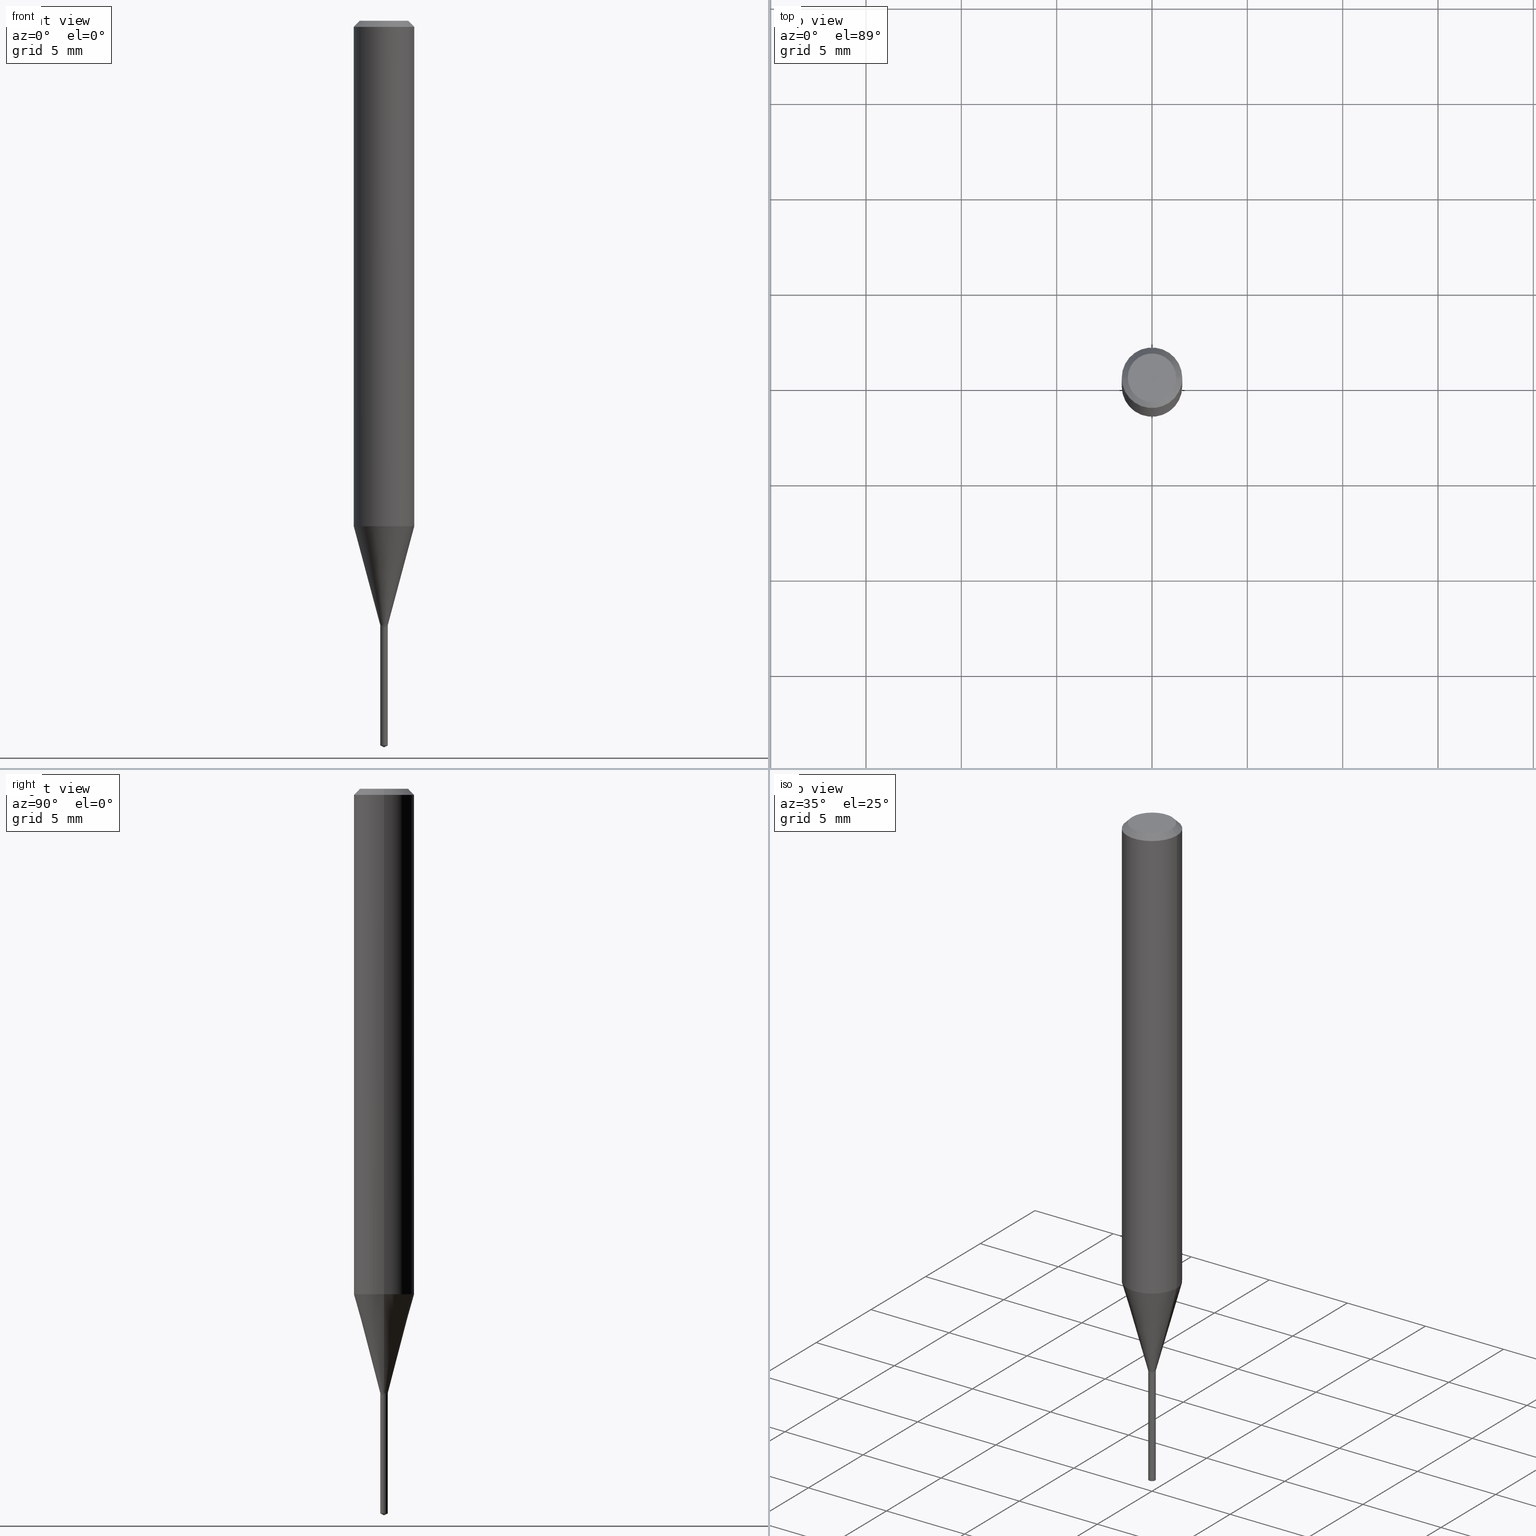
[diagram: canonical four-view strip — front | top / right | iso, engineering-drawing reading convention]
A machine part, canonical four-view strip (front | top / right | iso — engineering-drawing reading convention). The complete STEP part file that produces these views, byte-faithful:
ISO-10303-21;
HEADER;
FILE_DESCRIPTION (( 'STEP AP203' ),
    '1' );
FILE_NAME ('07233.STEP',
    '2024-04-23T20:07:11',
    ( '' ),
    ( '' ),
    'SwSTEP 2.0',
    'SolidWorks 2023',
    '' );
FILE_SCHEMA (( 'CONFIG_CONTROL_DESIGN' ));
ENDSEC;

DATA;
#1 = CALENDAR_DATE ( 2024, 23, 4 ) ;
#2 = CARTESIAN_POINT ( 'NONE',  ( 3.056836007731421306E-29, -4.364351673553932471E-15, -1.250000000000000000 ) ) ;
#3 = CIRCLE ( 'NONE', #370, 0.007849999999999992401 ) ;
#4 = PERSON_AND_ORGANIZATION_ROLE ( 'design_owner' ) ;
#5 = VERTEX_POINT ( 'NONE', #387 ) ;
#6 = DIRECTION ( 'NONE',  ( 1.000000000000000000, -6.982962677686205179E-15, 0.000000000000000000 ) ) ;
#7 = DIRECTION ( 'NONE',  ( 1.000000000000000000, -6.982962677686266711E-15, 0.000000000000000000 ) ) ;
#8 = ORGANIZATION ( 'UNSPECIFIED', 'UNSPECIFIED', '' ) ;
#9 = EDGE_CURVE ( 'NONE', #426, #252, #354, .T. ) ;
#10 = PERSON_AND_ORGANIZATION ( #211, #8 ) ;
#11 = VERTEX_POINT ( 'NONE', #419 ) ;
#12 = LINE ( 'NONE', #89, #381 ) ;
#13 = EDGE_CURVE ( 'NONE', #42, #480, #78, .T. ) ;
#14 = CARTESIAN_POINT ( 'NONE',  ( 3.056836007731421306E-29, -4.364351673553932471E-15, -1.250000000000000000 ) ) ;
#15 = CALENDAR_DATE ( 2024, 23, 4 ) ;
#16 = DIRECTION ( 'NONE',  ( -2.445468806185136597E-29, 3.491481338843145583E-15, 1.000000000000000000 ) ) ;
#17 = LINE ( 'NONE', #197, #401 ) ;
#18 = VECTOR ( 'NONE', #321, 39.37007874015748143 ) ;
#19 = ORIENTED_EDGE ( 'NONE', *, *, #475, .F. ) ;
#20 = CONICAL_SURFACE ( 'NONE', #427, 84.42940631927142192, 1.134464013796302684 ) ;
#21 = LINE ( 'NONE', #332, #287 ) ;
#22 = LOCAL_TIME ( 16, 7, 11.00000000000000000, #106 ) ;
#23 = CARTESIAN_POINT ( 'NONE',  ( 0.04999999999999999584, -4.077247707424184705E-16, -1.592040838888913461E-18 ) ) ;
#24 = DIRECTION ( 'NONE',  ( -2.445468806185136597E-29, 3.491481338843145583E-15, 1.000000000000000000 ) ) ;
#25 = ADVANCED_FACE ( 'NONE', ( #429 ), #424, .T. ) ;
#26 = DIRECTION ( 'NONE',  ( -2.445468806185136597E-29, 3.491481338843145583E-15, 1.000000000000000000 ) ) ;
#27 = ORIENTED_EDGE ( 'NONE', *, *, #295, .T. ) ;
#28 = CIRCLE ( 'NONE', #413, 0.007349999999999991956 ) ;
#29 = DIRECTION ( 'NONE',  ( 1.000000000000000000, -6.982962677686264344E-15, 0.000000000000000000 ) ) ;
#30 = EDGE_LOOP ( 'NONE', ( #389, #129, #473 ) ) ;
#31 = CARTESIAN_POINT ( 'NONE',  ( 0.06250000000000012490, -4.080296704445417629E-15, -1.043643423366360956 ) ) ;
#32 = EDGE_LOOP ( 'NONE', ( #375, #222, #237, #263 ) ) ;
#33 = DATE_AND_TIME ( #223, #279 ) ;
#34 = AXIS2_PLACEMENT_3D ( 'NONE', #469, #242, #392 ) ;
#35 = CARTESIAN_POINT ( 'NONE',  ( -0.007349999999999991956, -4.309477555301454136E-15, -1.250000000000000000 ) ) ;
#36 = MECHANICAL_CONTEXT ( 'NONE', #357, 'mechanical' ) ;
#37 = ORIENTED_EDGE ( 'NONE', *, *, #236, .T. ) ;
#38 = APPROVAL ( #388, 'UNSPECIFIED' ) ;
#39 = DIRECTION ( 'NONE',  ( 1.000000000000000000, -6.982962677686266711E-15, 0.000000000000000000 ) ) ;
#40 = DIRECTION ( 'NONE',  ( -6.982962677686265922E-15, -1.000000000000000000, 0.000000000000000000 ) ) ;
#41 = CARTESIAN_POINT ( 'NONE',  ( 3.056836007731441415E-31, -4.364351673553961684E-17, -0.01250000000000008396 ) ) ;
#42 = VERTEX_POINT ( 'NONE', #75 ) ;
#43 = APPROVAL_ROLE ( '' ) ;
#44 = ORIENTED_EDGE ( 'NONE', *, *, #314, .F. ) ;
#45 = CARTESIAN_POINT ( 'NONE',  ( 0.06250000000000000000, -4.800786840909313294E-16, -0.01250000000000008396 ) ) ;
#46 = ADVANCED_FACE ( 'NONE', ( #80 ), #147, .T. ) ;
#47 = DIRECTION ( 'NONE',  ( 6.982962677686265922E-15, 1.000000000000000000, -3.491639703189525300E-15 ) ) ;
#48 = CARTESIAN_POINT ( 'NONE',  ( 3.056836007731421306E-29, -4.364351673553932471E-15, -1.250000000000000000 ) ) ;
#49 = AXIS2_PLACEMENT_3D ( 'NONE', #256, #226, #271 ) ;
#50 = DATE_AND_TIME ( #15, #135 ) ;
#51 = DIRECTION ( 'NONE',  ( -2.445468806185136597E-29, 3.491481338843145583E-15, 1.000000000000000000 ) ) ;
#52 = ORIENTED_EDGE ( 'NONE', *, *, #132, .F. ) ;
#53 = AXIS2_PLACEMENT_3D ( 'NONE', #460, #188, #240 ) ;
#54 = DIRECTION ( 'NONE',  ( -2.445358220953112322E-29, 3.491639703189524906E-15, 1.000000000000000000 ) ) ;
#55 = EDGE_LOOP ( 'NONE', ( #69, #203 ) ) ;
#56 = DIMENSIONAL_EXPONENTS ( 1.000000000000000000, 0.000000000000000000, 0.000000000000000000, 0.000000000000000000, 0.000000000000000000, 0.000000000000000000, 0.000000000000000000 ) ;
#57 = DIRECTION ( 'NONE',  ( -2.445358220953112322E-29, 3.491639703189525300E-15, 1.000000000000000000 ) ) ;
#58 = MANIFOLD_SOLID_BREP ( 'Body-Move/Copy2[2]', #123 ) ;
#59 = SECURITY_CLASSIFICATION ( '', '', #355 ) ;
#60 = DIRECTION ( 'NONE',  ( -6.982962677686267499E-15, -1.000000000000000000, 3.520397390770575354E-15 ) ) ;
#61 = EDGE_CURVE ( 'NONE', #155, #458, #3, .T. ) ;
#62 = DIRECTION ( 'NONE',  ( 2.445468806185136597E-29, -3.491481338843145583E-15, -1.000000000000000000 ) ) ;
#63 = CIRCLE ( 'NONE', #386, 0.007849999999999992401 ) ;
#64 = DIRECTION ( 'NONE',  ( 2.445468806185136597E-29, -3.491481338843145583E-15, -1.000000000000000000 ) ) ;
#65 = ORIENTED_EDGE ( 'NONE', *, *, #216, .F. ) ;
#66 = APPROVAL ( #277, 'UNSPECIFIED' ) ;
#67 = LOCAL_TIME ( 16, 7, 11.00000000000000000, #193 ) ;
#68 = DIRECTION ( 'NONE',  ( -1.000000000000000000, 6.982962677686266711E-15, 0.000000000000000000 ) ) ;
#69 = ORIENTED_EDGE ( 'NONE', *, *, #61, .T. ) ;
#70 = PERSON_AND_ORGANIZATION_ROLE ( 'creator' ) ;
#71 = AXIS2_PLACEMENT_3D ( 'NONE', #362, #51, #158 ) ;
#72 = VERTEX_POINT ( 'NONE', #35 ) ;
#73 = FACE_OUTER_BOUND ( 'NONE', #422, .T. ) ;
#74 = LINE ( 'NONE', #190, #364 ) ;
#75 = CARTESIAN_POINT ( 'NONE',  ( 0.007849999999999997605, -4.410788375360545255E-15, -1.247600000000000042 ) ) ;
#76 = CARTESIAN_POINT ( 'NONE',  ( -0.007849999999999997605, -4.303511420855442473E-15, -1.247600000000000042 ) ) ;
#77 = CARTESIAN_POINT ( 'NONE',  ( 3.050966882596576644E-29, -4.355972118340708465E-15, -1.247600000000000042 ) ) ;
#78 = CIRCLE ( 'NONE', #266, 0.007849999999999997605 ) ;
#79 = ORIENTED_EDGE ( 'NONE', *, *, #314, .T. ) ;
#80 = FACE_OUTER_BOUND ( 'NONE', #224, .T. ) ;
#81 = EDGE_CURVE ( 'NONE', #438, #252, #204, .T. ) ;
#82 = CC_DESIGN_APPROVAL ( #66, ( #59 ) ) ;
#83 = COORDINATED_UNIVERSAL_TIME_OFFSET ( 5, 0, .BEHIND. ) ;
#84 = PLANE ( 'NONE',  #114 ) ;
#85 = AXIS2_PLACEMENT_3D ( 'NONE', #41, #313, #7 ) ;
#86 = DIRECTION ( 'NONE',  ( -6.982962677686267499E-15, -1.000000000000000000, 3.520397390770575354E-15 ) ) ;
#87 = CC_DESIGN_PERSON_AND_ORGANIZATION_ASSIGNMENT ( #247, #462, ( #452 ) ) ;
#88 = VERTEX_POINT ( 'NONE', #352 ) ;
#89 = CARTESIAN_POINT ( 'NONE',  ( -0.06250000000000006939, 4.440892098500631092E-16, -3.074334431409319267E-30 ) ) ;
#90 = ORIENTED_EDGE ( 'NONE', *, *, #258, .F. ) ;
#91 = CARTESIAN_POINT ( 'NONE',  ( -5.481625701980656655E-17, -0.007850000000004356965, -1.250000000000000000 ) ) ;
#92 = ORIENTED_EDGE ( 'NONE', *, *, #13, .T. ) ;
#93 = DIRECTION ( 'NONE',  ( 1.000000000000000000, -6.982962677686202024E-15, 0.000000000000000000 ) ) ;
#94 = DIRECTION ( 'NONE',  ( -2.445358220953112322E-29, 3.491639703189525300E-15, 1.000000000000000000 ) ) ;
#95 = ADVANCED_FACE ( 'NONE', ( #233 ), #457, .F. ) ;
#96 = VECTOR ( 'NONE', #57, 39.37007874015748143 ) ;
#97 = VECTOR ( 'NONE', #94, 39.37007874015748143 ) ;
#98 = CARTESIAN_POINT ( 'NONE',  ( 5.577760475720444332E-17, 0.007849999999995627836, -1.250000000000000000 ) ) ;
#99 = FACE_OUTER_BOUND ( 'NONE', #269, .T. ) ;
#100 = ORIENTED_EDGE ( 'NONE', *, *, #320, .T. ) ;
#101 = LINE ( 'NONE', #261, #185 ) ;
#102 = ORIENTED_EDGE ( 'NONE', *, *, #216, .T. ) ;
#103 = AXIS2_PLACEMENT_3D ( 'NONE', #336, #376, #60 ) ;
#104 =( NAMED_UNIT ( * ) SI_UNIT ( $, .STERADIAN. ) SOLID_ANGLE_UNIT ( ) );
#105 = VERTEX_POINT ( 'NONE', #112 ) ;
#106 = COORDINATED_UNIVERSAL_TIME_OFFSET ( 5, 0, .BEHIND. ) ;
#107 = DIRECTION ( 'NONE',  ( -2.445468806185136877E-29, 3.491481338843145188E-15, 1.000000000000000000 ) ) ;
#108 = CLOSED_SHELL ( 'NONE', ( #304, #225, #411, #436, #246 ) ) ;
#109 = PERSON_AND_ORGANIZATION ( #211, #8 ) ;
#110 = ORIENTED_EDGE ( 'NONE', *, *, #368, .T. ) ;
#111 = CARTESIAN_POINT ( 'NONE',  ( 3.050966882596576644E-29, -4.355972118340708465E-15, -1.247600000000000042 ) ) ;
#112 = CARTESIAN_POINT ( 'NONE',  ( 0.007349999999999991956, -4.415676449234925465E-15, -1.250000000000000000 ) ) ;
#113 = DIRECTION ( 'NONE',  ( -2.445468806185136597E-29, 3.491481338843145583E-15, 1.000000000000000000 ) ) ;
#114 = AXIS2_PLACEMENT_3D ( 'NONE', #323, #474, #47 ) ;
#115 = SHAPE_DEFINITION_REPRESENTATION ( #251, #150 ) ;
#116 = EDGE_CURVE ( 'NONE', #319, #42, #306, .T. ) ;
#117 = AXIS2_PLACEMENT_3D ( 'NONE', #400, #54, #206 ) ;
#118 = LINE ( 'NONE', #245, #18 ) ;
#119 = LOCAL_TIME ( 16, 7, 11.00000000000000000, #244 ) ;
#120 = EDGE_LOOP ( 'NONE', ( #52, #37, #276 ) ) ;
#121 = PERSON_AND_ORGANIZATION_ROLE ( 'classification_officer' ) ;
#122 = FACE_OUTER_BOUND ( 'NONE', #32, .T. ) ;
#123 = CLOSED_SHELL ( 'NONE', ( #210, #330, #46, #481, #162, #200, #25, #350, #404, #273, #95, #378 ) ) ;
#124 = VECTOR ( 'NONE', #283, 39.37007874015748143 ) ;
#125 = DIRECTION ( 'NONE',  ( -2.445468806185136597E-29, 3.491481338843145583E-15, 1.000000000000000000 ) ) ;
#126 = EDGE_CURVE ( 'NONE', #218, #302, #63, .T. ) ;
#127 = ORIENTED_EDGE ( 'NONE', *, *, #81, .F. ) ;
#128 = DIRECTION ( 'NONE',  ( -2.445468806185136597E-29, 3.491481338843145583E-15, 1.000000000000000000 ) ) ;
#129 = ORIENTED_EDGE ( 'NONE', *, *, #132, .T. ) ;
#130 = DIRECTION ( 'NONE',  ( 0.2588190451025211836, 1.565188264969622559E-15, 0.9659258262890679791 ) ) ;
#131 = PRODUCT_RELATED_PRODUCT_CATEGORY ( 'detail', '', ( #329 ) ) ;
#132 = EDGE_CURVE ( 'NONE', #11, #302, #74, .T. ) ;
#133 = CARTESIAN_POINT ( 'NONE',  ( -0.06250000000000000000, -1.399663317062718764E-15, -0.01250000000000008396 ) ) ;
#134 = FACE_OUTER_BOUND ( 'NONE', #286, .T. ) ;
#135 = LOCAL_TIME ( 16, 7, 11.00000000000000000, #83 ) ;
#136 = CARTESIAN_POINT ( 'NONE',  ( 3.056836007731441415E-31, -4.364351673553961684E-17, -0.01250000000000008396 ) ) ;
#137 = ORIENTED_EDGE ( 'NONE', *, *, #342, .T. ) ;
#138 = DIRECTION ( 'NONE',  ( 1.000000000000000000, -6.982962677686266711E-15, 0.000000000000000000 ) ) ;
#139 = EDGE_LOOP ( 'NONE', ( #453, #177, #167, #175 ) ) ;
#140 = EDGE_CURVE ( 'NONE', #88, #480, #227, .T. ) ;
#141 = DIRECTION ( 'NONE',  ( 1.000000000000000000, -6.982962677686202024E-15, 0.000000000000000000 ) ) ;
#142 = VERTEX_POINT ( 'NONE', #472 ) ;
#143 = AXIS2_PLACEMENT_3D ( 'NONE', #459, #144, #39 ) ;
#144 = DIRECTION ( 'NONE',  ( -2.445468806185136597E-29, 3.491481338843145583E-15, 1.000000000000000000 ) ) ;
#145 = DIRECTION ( 'NONE',  ( 1.000000000000000000, -6.982962677686265922E-15, 4.876176775795935793E-29 ) ) ;
#146 =( LENGTH_UNIT ( ) NAMED_UNIT ( * ) SI_UNIT ( $, .METRE. ) );
#147 = CYLINDRICAL_SURFACE ( 'NONE', #53, 0.06250000000000006939 ) ;
#148 = CARTESIAN_POINT ( 'NONE',  ( 3.050966882596576644E-29, -4.355972118340708465E-15, -1.247600000000000042 ) ) ;
#149 = CARTESIAN_POINT ( 'NONE',  ( 3.056836007731421306E-29, -4.364351673553932471E-15, -1.250000000000000000 ) ) ;
#150 = ADVANCED_BREP_SHAPE_REPRESENTATION ( '07233', ( #241, #58, #322 ), #183 ) ;
#151 =( NAMED_UNIT ( * ) PLANE_ANGLE_UNIT ( ) SI_UNIT ( $, .RADIAN. ) );
#152 = DIRECTION ( 'NONE',  ( 1.000000000000000000, -6.982962677686205179E-15, 0.000000000000000000 ) ) ;
#153 = ORIENTED_EDGE ( 'NONE', *, *, #428, .F. ) ;
#154 = COORDINATED_UNIVERSAL_TIME_OFFSET ( 5, 0, .BEHIND. ) ;
#155 = VERTEX_POINT ( 'NONE', #91 ) ;
#156 = EDGE_CURVE ( 'NONE', #458, #155, #485, .T. ) ;
#157 = AXIS2_PLACEMENT_3D ( 'NONE', #136, #64, #214 ) ;
#158 = DIRECTION ( 'NONE',  ( 1.000000000000000000, -6.982962677686266711E-15, 4.876176775795935793E-29 ) ) ;
#159 = DIRECTION ( 'NONE',  ( -6.982962677686265922E-15, -1.000000000000000000, 0.000000000000000000 ) ) ;
#160 = AXIS2_PLACEMENT_3D ( 'NONE', #148, #189, #6 ) ;
#161 = CYLINDRICAL_SURFACE ( 'NONE', #71, 0.007849999999999997605 ) ;
#162 = ADVANCED_FACE ( 'NONE', ( #248 ), #161, .T. ) ;
#163 = AXIS2_PLACEMENT_3D ( 'NONE', #280, #125, #468 ) ;
#164 = ORIENTED_EDGE ( 'NONE', *, *, #363, .F. ) ;
#165 = DATE_TIME_ROLE ( 'classification_date' ) ;
#166 = DIRECTION ( 'NONE',  ( -2.445468806185136877E-29, 3.491481338843145188E-15, 1.000000000000000000 ) ) ;
#167 = ORIENTED_EDGE ( 'NONE', *, *, #116, .T. ) ;
#168 = CYLINDRICAL_SURFACE ( 'NONE', #292, 0.007849999999999997605 ) ;
#169 = CONICAL_SURFACE ( 'NONE', #160, 0.007849999999999997605, 0.2617993877991499074 ) ;
#170 = CYLINDRICAL_SURFACE ( 'NONE', #255, 0.007849999999999992401 ) ;
#171 = LINE ( 'NONE', #301, #420 ) ;
#172 = CARTESIAN_POINT ( 'NONE',  ( 3.055613273328329626E-29, -4.362605932884511757E-15, -1.249500000000000499 ) ) ;
#173 = ORIENTED_EDGE ( 'NONE', *, *, #396, .T. ) ;
#174 = CARTESIAN_POINT ( 'NONE',  ( 2.552197436622703749E-29, -3.643861537090025960E-15, -1.043643423366360956 ) ) ;
#175 = ORIENTED_EDGE ( 'NONE', *, *, #334, .F. ) ;
#176 = DIRECTION ( 'NONE',  ( -2.445468806185136597E-29, 3.491481338843145583E-15, 1.000000000000000000 ) ) ;
#177 = ORIENTED_EDGE ( 'NONE', *, *, #475, .T. ) ;
#178 = VECTOR ( 'NONE', #327, 39.37007874015748143 ) ;
#179 = DATE_TIME_ROLE ( 'creation_date' ) ;
#180 = ORIENTED_EDGE ( 'NONE', *, *, #455, .T. ) ;
#181 = AXIS2_PLACEMENT_3D ( 'NONE', #409, #477, #406 ) ;
#182 = EDGE_CURVE ( 'NONE', #105, #319, #118, .T. ) ;
#183 =( GEOMETRIC_REPRESENTATION_CONTEXT ( 3 ) GLOBAL_UNCERTAINTY_ASSIGNED_CONTEXT ( ( #398 ) ) GLOBAL_UNIT_ASSIGNED_CONTEXT ( ( #421, #151, #104 ) ) REPRESENTATION_CONTEXT ( 'NONE', 'WORKASPACE' ) );
#184 = CALENDAR_DATE ( 2024, 23, 4 ) ;
#185 = VECTOR ( 'NONE', #412, 39.37007874015748854 ) ;
#186 = EDGE_LOOP ( 'NONE', ( #484, #447 ) ) ;
#187 = CARTESIAN_POINT ( 'NONE',  ( 0.000000000000000000, 0.000000000000000000, 0.000000000000000000 ) ) ;
#188 = DIRECTION ( 'NONE',  ( -2.445468806185136597E-29, 3.491481338843145583E-15, 1.000000000000000000 ) ) ;
#189 = DIRECTION ( 'NONE',  ( -2.445468806185136597E-29, 3.491481338843145583E-15, 1.000000000000000000 ) ) ;
#190 = CARTESIAN_POINT ( 'NONE',  ( 3.668037331429668062E-29, -5.237459554784286570E-15, -1.500000000000000222 ) ) ;
#191 = CC_DESIGN_PERSON_AND_ORGANIZATION_ASSIGNMENT ( #423, #4, ( #329 ) ) ;
#192 = ORIENTED_EDGE ( 'NONE', *, *, #182, .T. ) ;
#193 = COORDINATED_UNIVERSAL_TIME_OFFSET ( 5, 0, .BEHIND. ) ;
#194 = CIRCLE ( 'NONE', #431, 0.04999999999999999584 ) ;
#195 = ORIENTED_EDGE ( 'NONE', *, *, #61, .F. ) ;
#196 = PERSON_AND_ORGANIZATION_ROLE ( 'creator' ) ;
#197 = CARTESIAN_POINT ( 'NONE',  ( 0.06250000000000006939, -4.364351673553921624E-16, 3.047610484872463374E-30 ) ) ;
#198 = ORIENTED_EDGE ( 'NONE', *, *, #334, .T. ) ;
#199 = DIRECTION ( 'NONE',  ( -2.445358220953112322E-29, 3.491639703189524906E-15, 1.000000000000000000 ) ) ;
#200 = ADVANCED_FACE ( 'NONE', ( #361 ), #168, .T. ) ;
#201 = CARTESIAN_POINT ( 'NONE',  ( -5.481625701980053299E-17, -0.007850000000005215653, -1.496339484883483228 ) ) ;
#202 = FACE_OUTER_BOUND ( 'NONE', #208, .T. ) ;
#203 = ORIENTED_EDGE ( 'NONE', *, *, #156, .T. ) ;
#204 = CIRCLE ( 'NONE', #85, 0.06250000000000000000 ) ;
#205 = PERSON_AND_ORGANIZATION ( #211, #8 ) ;
#206 = DIRECTION ( 'NONE',  ( -6.982962677686265922E-15, -1.000000000000000000, 0.000000000000000000 ) ) ;
#207 = VECTOR ( 'NONE', #394, 39.37007874015748854 ) ;
#208 = EDGE_LOOP ( 'NONE', ( #180, #290, #195, #365 ) ) ;
#209 = CARTESIAN_POINT ( 'NONE',  ( 3.056836007731421306E-29, -4.364351673553932471E-15, -1.250000000000000000 ) ) ;
#210 = ADVANCED_FACE ( 'NONE', ( #122 ), #433, .T. ) ;
#211 = PERSON ( 'UNSPECIFIED', 'UNSPECIFIED', 'UNSPECIFIED', ('UNSPECIFIED'), ('UNSPECIFIED'), ('UNSPECIFIED') ) ;
#212 = CARTESIAN_POINT ( 'NONE',  ( 3.056836007731421306E-29, -4.364351673553932471E-15, -1.250000000000000000 ) ) ;
#213 = CIRCLE ( 'NONE', #483, 0.06250000000000012490 ) ;
#214 = DIRECTION ( 'NONE',  ( -1.000000000000000000, 6.982962677686266711E-15, 0.000000000000000000 ) ) ;
#215 = CC_DESIGN_PERSON_AND_ORGANIZATION_ASSIGNMENT ( #205, #121, ( #59 ) ) ;
#216 = EDGE_CURVE ( 'NONE', #416, #252, #17, .T. ) ;
#217 = DIRECTION ( 'NONE',  ( -2.445468806185136597E-29, 3.491481338843145583E-15, 1.000000000000000000 ) ) ;
#218 = VERTEX_POINT ( 'NONE', #434 ) ;
#219 = CIRCLE ( 'NONE', #307, 0.06250000000000012490 ) ;
#220 = CC_DESIGN_APPROVAL ( #360, ( #452 ) ) ;
#221 = FACE_OUTER_BOUND ( 'NONE', #487, .T. ) ;
#222 = ORIENTED_EDGE ( 'NONE', *, *, #428, .T. ) ;
#223 = CALENDAR_DATE ( 2024, 23, 4 ) ;
#224 = EDGE_LOOP ( 'NONE', ( #262, #326, #344, #65 ) ) ;
#225 = ADVANCED_FACE ( 'NONE', ( #289 ), #20, .T. ) ;
#226 = DIRECTION ( 'NONE',  ( -2.445468806185136597E-29, 3.491481338843145583E-15, 1.000000000000000000 ) ) ;
#227 = LINE ( 'NONE', #274, #124 ) ;
#228 = CC_DESIGN_APPROVAL ( #38, ( #393 ) ) ;
#229 = CIRCLE ( 'NONE', #311, 0.007849999999999997605 ) ;
#230 = LENGTH_MEASURE_WITH_UNIT ( LENGTH_MEASURE( 0.02539999999999999897 ), #146 );
#231 = DIRECTION ( 'NONE',  ( -2.438088387897960049E-29, 3.491481338843145188E-15, 1.000000000000000000 ) ) ;
#232 = CONICAL_SURFACE ( 'NONE', #157, 0.06250000000000000000, 0.7853981633974452814 ) ;
#233 = FACE_OUTER_BOUND ( 'NONE', #339, .T. ) ;
#234 = ORIENTED_EDGE ( 'NONE', *, *, #396, .F. ) ;
#235 = PERSON_AND_ORGANIZATION ( #211, #8 ) ;
#236 = EDGE_CURVE ( 'NONE', #11, #218, #366, .T. ) ;
#237 = ORIENTED_EDGE ( 'NONE', *, *, #368, .F. ) ;
#238 = DATE_AND_TIME ( #282, #119 ) ;
#239 = CONICAL_SURFACE ( 'NONE', #303, 0.06250000000000000000, 0.7853981633974452814 ) ;
#240 = DIRECTION ( 'NONE',  ( 1.000000000000000000, -6.982962677686266711E-15, 4.876176775795935793E-29 ) ) ;
#241 = MANIFOLD_SOLID_BREP ( 'Body-Move/Copy2[1]', #108 ) ;
#242 = DIRECTION ( 'NONE',  ( 2.438088387897960049E-29, -3.491481338843145188E-15, -1.000000000000000000 ) ) ;
#243 = VECTOR ( 'NONE', #464, 39.37007874015748143 ) ;
#244 = COORDINATED_UNIVERSAL_TIME_OFFSET ( 5, 0, .BEHIND. ) ;
#245 = CARTESIAN_POINT ( 'NONE',  ( 0.007349999999999991956, -4.415676449234925465E-15, -1.250000000000000000 ) ) ;
#246 = ADVANCED_FACE ( 'NONE', ( #432 ), #84, .F. ) ;
#247 = PERSON_AND_ORGANIZATION ( #211, #8 ) ;
#248 = FACE_OUTER_BOUND ( 'NONE', #417, .T. ) ;
#249 = EDGE_LOOP ( 'NONE', ( #234, #198, #79, #414 ) ) ;
#250 = CARTESIAN_POINT ( 'NONE',  ( -0.06250000000000000000, 3.927916506198520587E-16, -0.01250000000000008396 ) ) ;
#251 = PRODUCT_DEFINITION_SHAPE ( 'NONE', 'NONE',  #393 ) ;
#252 = VERTEX_POINT ( 'NONE', #45 ) ;
#253 = DIRECTION ( 'NONE',  ( 1.000000000000000000, -6.982962677686264344E-15, 0.000000000000000000 ) ) ;
#254 = DIRECTION ( 'NONE',  ( -2.445358220953112322E-29, 3.491639703189524906E-15, 1.000000000000000000 ) ) ;
#255 = AXIS2_PLACEMENT_3D ( 'NONE', #209, #367, #333 ) ;
#256 = CARTESIAN_POINT ( 'NONE',  ( 3.893286209682126177E-47, -5.558580879666067980E-33, -1.592040838891559689E-18 ) ) ;
#257 = AXIS2_PLACEMENT_3D ( 'NONE', #172, #446, #138 ) ;
#258 = EDGE_CURVE ( 'NONE', #5, #438, #325, .T. ) ;
#259 = DIRECTION ( 'NONE',  ( 1.000000000000000000, -6.982962677686266711E-15, 4.876176775795935793E-29 ) ) ;
#260 = ORIENTED_EDGE ( 'NONE', *, *, #488, .F. ) ;
#261 = CARTESIAN_POINT ( 'NONE',  ( -0.007849999999999997605, -4.300194513583540433E-15, -1.247600000000000042 ) ) ;
#262 = ORIENTED_EDGE ( 'NONE', *, *, #363, .T. ) ;
#263 = ORIENTED_EDGE ( 'NONE', *, *, #182, .F. ) ;
#264 = CONICAL_SURFACE ( 'NONE', #430, 0.007349999999999991956, 0.7853981633978281973 ) ;
#265 = DATE_AND_TIME ( #1, #22 ) ;
#266 = AXIS2_PLACEMENT_3D ( 'NONE', #111, #272, #152 ) ;
#267 = DIRECTION ( 'NONE',  ( -2.445358220953112322E-29, 3.491639703189524906E-15, 1.000000000000000000 ) ) ;
#268 = APPROVAL_DATE_TIME ( #353, #38 ) ;
#269 = EDGE_LOOP ( 'NONE', ( #153, #27, #192, #19 ) ) ;
#270 = CC_DESIGN_PERSON_AND_ORGANIZATION_ASSIGNMENT ( #109, #196, ( #452 ) ) ;
#271 = DIRECTION ( 'NONE',  ( 1.000000000000000000, -6.982962677686265922E-15, 4.875957971899673662E-29 ) ) ;
#272 = DIRECTION ( 'NONE',  ( -2.445468806185136597E-29, 3.491481338843145583E-15, 1.000000000000000000 ) ) ;
#273 = ADVANCED_FACE ( 'NONE', ( #356 ), #359, .F. ) ;
#274 = CARTESIAN_POINT ( 'NONE',  ( -0.007849999999999997605, 5.577760475716784757E-17, -3.861364045850100084E-31 ) ) ;
#275 = DESIGN_CONTEXT ( 'detailed design', #382, 'design' ) ;
#276 = ORIENTED_EDGE ( 'NONE', *, *, #455, .F. ) ;
#277 = APPROVAL_STATUS ( 'not_yet_approved' ) ;
#278 = DIRECTION ( 'NONE',  ( 1.000000000000000000, -6.982962677686205179E-15, 0.000000000000000000 ) ) ;
#279 = LOCAL_TIME ( 16, 7, 11.00000000000000000, #154 ) ;
#280 = CARTESIAN_POINT ( 'NONE',  ( 3.056836007731421306E-29, -4.364351673553932471E-15, -1.250000000000000000 ) ) ;
#281 = EDGE_CURVE ( 'NONE', #142, #438, #12, .T. ) ;
#282 = CALENDAR_DATE ( 2024, 23, 4 ) ;
#283 = DIRECTION ( 'NONE',  ( -2.445468806185136877E-29, 3.491481338843145188E-15, 1.000000000000000000 ) ) ;
#284 = VECTOR ( 'NONE', #107, 39.37007874015748143 ) ;
#285 = DIRECTION ( 'NONE',  ( -2.445358220953112322E-29, 3.491639703189524906E-15, 1.000000000000000000 ) ) ;
#286 = EDGE_LOOP ( 'NONE', ( #341, #337, #137, #470 ) ) ;
#287 = VECTOR ( 'NONE', #130, 39.37007874015748854 ) ;
#288 = PERSON_AND_ORGANIZATION ( #211, #8 ) ;
#289 = FACE_OUTER_BOUND ( 'NONE', #120, .T. ) ;
#290 = ORIENTED_EDGE ( 'NONE', *, *, #448, .T. ) ;
#291 = CARTESIAN_POINT ( 'NONE',  ( 0.007849999999999997605, -4.417422189904349335E-15, -1.249500000000000499 ) ) ;
#292 = AXIS2_PLACEMENT_3D ( 'NONE', #439, #16, #441 ) ;
#293 = LINE ( 'NONE', #442, #97 ) ;
#294 = CARTESIAN_POINT ( 'NONE',  ( 3.659224292236601672E-29, -5.224480399436358067E-15, -1.496339484883483228 ) ) ;
#295 = EDGE_CURVE ( 'NONE', #72, #105, #328, .T. ) ;
#296 = CARTESIAN_POINT ( 'NONE',  ( -5.481625701980656655E-17, -0.007850000000004356965, -1.250000000000000000 ) ) ;
#297 = ORIENTED_EDGE ( 'NONE', *, *, #13, .F. ) ;
#298 = LINE ( 'NONE', #296, #96 ) ;
#299 = ORIENTED_EDGE ( 'NONE', *, *, #418, .F. ) ;
#300 = AXIS2_PLACEMENT_3D ( 'NONE', #14, #128, #93 ) ;
#301 = CARTESIAN_POINT ( 'NONE',  ( -0.007349999999999991956, -4.312126782475565337E-15, -1.250000000000000000 ) ) ;
#302 = VERTEX_POINT ( 'NONE', #201 ) ;
#303 = AXIS2_PLACEMENT_3D ( 'NONE', #486, #62, #68 ) ;
#304 = ADVANCED_FACE ( 'NONE', ( #202 ), #391, .T. ) ;
#305 = APPROVAL_STATUS ( 'not_yet_approved' ) ;
#306 = LINE ( 'NONE', #456, #284 ) ;
#307 = AXIS2_PLACEMENT_3D ( 'NONE', #373, #24, #29 ) ;
#308 = CC_DESIGN_DATE_AND_TIME_ASSIGNMENT ( #33, #179, ( #393 ) ) ;
#309 = APPROVAL_DATE_TIME ( #265, #360 ) ;
#310 = DIRECTION ( 'NONE',  ( -2.445358220953112322E-29, 3.491639703189524906E-15, 1.000000000000000000 ) ) ;
#311 = AXIS2_PLACEMENT_3D ( 'NONE', #443, #217, #451 ) ;
#312 = DIRECTION ( 'NONE',  ( 0.000000000000000000, 0.000000000000000000, 1.000000000000000000 ) ) ;
#313 = DIRECTION ( 'NONE',  ( -2.445468806185136597E-29, 3.491481338843145583E-15, 1.000000000000000000 ) ) ;
#314 = EDGE_CURVE ( 'NONE', #42, #416, #21, .T. ) ;
#315 = AXIS2_PLACEMENT_3D ( 'NONE', #338, #476, #259 ) ;
#316 = DIRECTION ( 'NONE',  ( 1.000000000000000000, 0.000000000000000000, 0.000000000000000000 ) ) ;
#317 = DIRECTION ( 'NONE',  ( -6.328713451373334669E-15, -0.9063077870366434974, 0.4226182617407129860 ) ) ;
#318 = CARTESIAN_POINT ( 'NONE',  ( 3.893286209682126177E-47, -5.558580879666067980E-33, -1.592040838891559689E-18 ) ) ;
#319 = VERTEX_POINT ( 'NONE', #291 ) ;
#320 = EDGE_CURVE ( 'NONE', #252, #438, #405, .T. ) ;
#321 = DIRECTION ( 'NONE',  ( 0.7071067811868161357, -2.468850131085070533E-15, 0.7071067811862788988 ) ) ;
#322 = AXIS2_PLACEMENT_3D ( 'NONE', #187, #312, #316 ) ;
#323 = CARTESIAN_POINT ( 'NONE',  ( 3.056836007731421306E-29, -4.364351673553932471E-15, -1.250000000000000000 ) ) ;
#324 = CC_DESIGN_PERSON_AND_ORGANIZATION_ASSIGNMENT ( #10, #70, ( #393 ) ) ;
#325 = LINE ( 'NONE', #250, #178 ) ;
#326 = ORIENTED_EDGE ( 'NONE', *, *, #281, .T. ) ;
#327 = DIRECTION ( 'NONE',  ( -0.7071067811865453523, 2.468850131082234184E-15, -0.7071067811865496822 ) ) ;
#328 = CIRCLE ( 'NONE', #300, 0.007349999999999991956 ) ;
#329 = PRODUCT ( '07233', '07233', '', ( #36 ) ) ;
#330 = ADVANCED_FACE ( 'NONE', ( #479 ), #232, .T. ) ;
#331 = ORIENTED_EDGE ( 'NONE', *, *, #116, .F. ) ;
#332 = CARTESIAN_POINT ( 'NONE',  ( 0.007849999999999997605, -4.410788375360545255E-15, -1.247600000000000042 ) ) ;
#333 = DIRECTION ( 'NONE',  ( -6.982962677686265922E-15, -1.000000000000000000, 0.000000000000000000 ) ) ;
#334 = EDGE_CURVE ( 'NONE', #480, #42, #229, .T. ) ;
#335 = FACE_OUTER_BOUND ( 'NONE', #30, .T. ) ;
#336 = CARTESIAN_POINT ( 'NONE',  ( -9.260577014384575703E-28, 1.322288684474803865E-13, 37.87007874015748143 ) ) ;
#337 = ORIENTED_EDGE ( 'NONE', *, *, #126, .T. ) ;
#338 = CARTESIAN_POINT ( 'NONE',  ( 0.000000000000000000, 0.000000000000000000, 0.000000000000000000 ) ) ;
#339 = EDGE_LOOP ( 'NONE', ( #299, #425 ) ) ;
#340 = CARTESIAN_POINT ( 'NONE',  ( 3.056836007731421306E-29, -4.364351673553932471E-15, -1.250000000000000000 ) ) ;
#341 = ORIENTED_EDGE ( 'NONE', *, *, #448, .F. ) ;
#342 = EDGE_CURVE ( 'NONE', #302, #155, #298, .T. ) ;
#343 = APPLICATION_PROTOCOL_DEFINITION ( 'international standard', 'config_control_design', 1994, #357 ) ;
#344 = ORIENTED_EDGE ( 'NONE', *, *, #320, .F. ) ;
#345 = CONICAL_SURFACE ( 'NONE', #103, 84.42940631927142192, 1.134464013796302684 ) ;
#346 = DIRECTION ( 'NONE',  ( -2.445468806185136597E-29, 3.491481338843145583E-15, 1.000000000000000000 ) ) ;
#347 = EDGE_LOOP ( 'NONE', ( #402, #372, #100, #90 ) ) ;
#348 = CIRCLE ( 'NONE', #257, 0.007849999999999997605 ) ;
#349 = AXIS2_PLACEMENT_3D ( 'NONE', #77, #113, #278 ) ;
#350 = ADVANCED_FACE ( 'NONE', ( #371 ), #482, .T. ) ;
#351 = DIRECTION ( 'NONE',  ( -6.982962677686265922E-15, -1.000000000000000000, 0.000000000000000000 ) ) ;
#352 = CARTESIAN_POINT ( 'NONE',  ( -0.007849999999999997605, -4.303511420855442473E-15, -1.249500000000000499 ) ) ;
#353 = DATE_AND_TIME ( #184, #67 ) ;
#354 = LINE ( 'NONE', #490, #243 ) ;
#355 = SECURITY_CLASSIFICATION_LEVEL ( 'unclassified' ) ;
#356 = FACE_OUTER_BOUND ( 'NONE', #186, .T. ) ;
#357 = APPLICATION_CONTEXT ( 'configuration controlled 3d designs of mechanical parts and assemblies' ) ;
#358 = EDGE_CURVE ( 'NONE', #142, #416, #219, .T. ) ;
#359 = PLANE ( 'NONE',  #34 ) ;
#360 = APPROVAL ( #305, 'UNSPECIFIED' ) ;
#361 = FACE_OUTER_BOUND ( 'NONE', #139, .T. ) ;
#362 = CARTESIAN_POINT ( 'NONE',  ( 0.000000000000000000, 0.000000000000000000, 0.000000000000000000 ) ) ;
#363 = EDGE_CURVE ( 'NONE', #416, #142, #213, .T. ) ;
#364 = VECTOR ( 'NONE', #317, 39.37007874015748854 ) ;
#365 = ORIENTED_EDGE ( 'NONE', *, *, #342, .F. ) ;
#366 = LINE ( 'NONE', #437, #207 ) ;
#367 = DIRECTION ( 'NONE',  ( -2.445358220953112322E-29, 3.491639703189524906E-15, 1.000000000000000000 ) ) ;
#368 = EDGE_CURVE ( 'NONE', #319, #88, #348, .T. ) ;
#369 = DIRECTION ( 'NONE',  ( -6.982962677686265922E-15, -1.000000000000000000, 0.000000000000000000 ) ) ;
#370 = AXIS2_PLACEMENT_3D ( 'NONE', #149, #310, #351 ) ;
#371 = FACE_OUTER_BOUND ( 'NONE', #399, .T. ) ;
#372 = ORIENTED_EDGE ( 'NONE', *, *, #9, .T. ) ;
#373 = CARTESIAN_POINT ( 'NONE',  ( 2.552197436622703749E-29, -3.643861537090025960E-15, -1.043643423366360956 ) ) ;
#374 = APPROVAL_PERSON_ORGANIZATION ( #489, #360, #454 ) ;
#375 = ORIENTED_EDGE ( 'NONE', *, *, #418, .T. ) ;
#376 = DIRECTION ( 'NONE',  ( -2.445358220953112322E-29, 3.491639703189524906E-15, 1.000000000000000000 ) ) ;
#377 = ORIENTED_EDGE ( 'NONE', *, *, #140, .T. ) ;
#378 = ADVANCED_FACE ( 'NONE', ( #99 ), #264, .T. ) ;
#379 = DIRECTION ( 'NONE',  ( 1.000000000000000000, -6.982962677686265922E-15, 4.875957971899673662E-29 ) ) ;
#380 = ORIENTED_EDGE ( 'NONE', *, *, #9, .F. ) ;
#381 = VECTOR ( 'NONE', #397, 39.37007874015748143 ) ;
#382 = APPLICATION_CONTEXT ( 'configuration controlled 3d designs of mechanical parts and assemblies' ) ;
#383 = ORIENTED_EDGE ( 'NONE', *, *, #258, .T. ) ;
#384 = CIRCLE ( 'NONE', #143, 0.007849999999999997605 ) ;
#385 = CARTESIAN_POINT ( 'NONE',  ( 3.659224292236601672E-29, -5.224480399436358067E-15, -1.496339484883483228 ) ) ;
#386 = AXIS2_PLACEMENT_3D ( 'NONE', #385, #267, #40 ) ;
#387 = CARTESIAN_POINT ( 'NONE',  ( -0.04999999999999999584, 3.709698922520826725E-16, -1.592040838894077649E-18 ) ) ;
#388 = APPROVAL_STATUS ( 'not_yet_approved' ) ;
#389 = ORIENTED_EDGE ( 'NONE', *, *, #236, .F. ) ;
#390 = CIRCLE ( 'NONE', #49, 0.04999999999999999584 ) ;
#391 = CYLINDRICAL_SURFACE ( 'NONE', #117, 0.007849999999999992401 ) ;
#392 = DIRECTION ( 'NONE',  ( -1.000000000000000000, 6.982962677686265922E-15, -4.876176775795935793E-29 ) ) ;
#393 = PRODUCT_DEFINITION ( 'UNKNOWN', '', #452, #275 ) ;
#394 = DIRECTION ( 'NONE',  ( 6.439704144416989332E-15, 0.9063077870366464950, 0.4226182617407067688 ) ) ;
#395 = AXIS2_PLACEMENT_3D ( 'NONE', #294, #254, #369 ) ;
#396 = EDGE_CURVE ( 'NONE', #480, #142, #101, .T. ) ;
#397 = DIRECTION ( 'NONE',  ( -2.445468806185136877E-29, 3.491481338843145188E-15, 1.000000000000000000 ) ) ;
#398 = UNCERTAINTY_MEASURE_WITH_UNIT (LENGTH_MEASURE( 1.000000000000000082E-05 ), #421, 'distance_accuracy_value', 'NONE');
#399 = EDGE_LOOP ( 'NONE', ( #410, #450, #102, #127 ) ) ;
#400 = CARTESIAN_POINT ( 'NONE',  ( 3.056836007731421306E-29, -4.364351673553932471E-15, -1.250000000000000000 ) ) ;
#401 = VECTOR ( 'NONE', #166, 39.37007874015748143 ) ;
#402 = ORIENTED_EDGE ( 'NONE', *, *, #461, .F. ) ;
#403 = DIRECTION ( 'NONE',  ( -0.7071067811868161357, 7.493145998871324459E-15, 0.7071067811862788988 ) ) ;
#404 = ADVANCED_FACE ( 'NONE', ( #221 ), #239, .T. ) ;
#405 = CIRCLE ( 'NONE', #181, 0.06250000000000000000 ) ;
#406 = DIRECTION ( 'NONE',  ( 1.000000000000000000, -6.982962677686266711E-15, 0.000000000000000000 ) ) ;
#407 = APPROVAL_PERSON_ORGANIZATION ( #288, #66, #465 ) ;
#408 = DIRECTION ( 'NONE',  ( -2.445468806185136597E-29, 3.491481338843145583E-15, 1.000000000000000000 ) ) ;
#409 = CARTESIAN_POINT ( 'NONE',  ( 3.056836007731441415E-31, -4.364351673553961684E-17, -0.01250000000000008396 ) ) ;
#410 = ORIENTED_EDGE ( 'NONE', *, *, #281, .F. ) ;
#411 = ADVANCED_FACE ( 'NONE', ( #335 ), #345, .T. ) ;
#412 = DIRECTION ( 'NONE',  ( -0.2588190451025211836, 5.211531920934547886E-15, 0.9659258262890679791 ) ) ;
#413 = AXIS2_PLACEMENT_3D ( 'NONE', #212, #176, #141 ) ;
#414 = ORIENTED_EDGE ( 'NONE', *, *, #358, .F. ) ;
#415 = APPLICATION_PROTOCOL_DEFINITION ( 'international standard', 'config_control_design', 1994, #382 ) ;
#416 = VERTEX_POINT ( 'NONE', #31 ) ;
#417 = EDGE_LOOP ( 'NONE', ( #110, #377, #297, #331 ) ) ;
#418 = EDGE_CURVE ( 'NONE', #105, #72, #28, .T. ) ;
#419 = CARTESIAN_POINT ( 'NONE',  ( 3.668037331429668622E-29, -5.237459554784287358E-15, -1.500000000000000222 ) ) ;
#420 = VECTOR ( 'NONE', #403, 39.37007874015748143 ) ;
#421 =( CONVERSION_BASED_UNIT ( 'INCH', #230 ) LENGTH_UNIT ( ) NAMED_UNIT ( #56 ) );
#422 = EDGE_LOOP ( 'NONE', ( #92, #173, #164, #44 ) ) ;
#423 = PERSON_AND_ORGANIZATION ( #211, #8 ) ;
#424 = CONICAL_SURFACE ( 'NONE', #349, 0.007849999999999997605, 0.2617993877991499074 ) ;
#425 = ORIENTED_EDGE ( 'NONE', *, *, #295, .F. ) ;
#426 = VERTEX_POINT ( 'NONE', #23 ) ;
#427 = AXIS2_PLACEMENT_3D ( 'NONE', #466, #199, #86 ) ;
#428 = EDGE_CURVE ( 'NONE', #72, #88, #171, .T. ) ;
#429 = FACE_OUTER_BOUND ( 'NONE', #249, .T. ) ;
#430 = AXIS2_PLACEMENT_3D ( 'NONE', #340, #26, #449 ) ;
#431 = AXIS2_PLACEMENT_3D ( 'NONE', #318, #346, #379 ) ;
#432 = FACE_OUTER_BOUND ( 'NONE', #55, .T. ) ;
#433 = CONICAL_SURFACE ( 'NONE', #163, 0.007349999999999991956, 0.7853981633978281973 ) ;
#434 = CARTESIAN_POINT ( 'NONE',  ( 5.577760475720439402E-17, 0.007849999999994765679, -1.496339484883483228 ) ) ;
#435 = AXIS2_PLACEMENT_3D ( 'NONE', #2, #231, #145 ) ;
#436 = ADVANCED_FACE ( 'NONE', ( #134 ), #170, .T. ) ;
#437 = CARTESIAN_POINT ( 'NONE',  ( 3.668316218764602717E-29, -5.237063643918339248E-15, -1.500000000000000222 ) ) ;
#438 = VERTEX_POINT ( 'NONE', #133 ) ;
#439 = CARTESIAN_POINT ( 'NONE',  ( 0.000000000000000000, 0.000000000000000000, 0.000000000000000000 ) ) ;
#440 = ORIENTED_EDGE ( 'NONE', *, *, #81, .T. ) ;
#441 = DIRECTION ( 'NONE',  ( 1.000000000000000000, -6.982962677686266711E-15, 4.876176775795935793E-29 ) ) ;
#442 = CARTESIAN_POINT ( 'NONE',  ( 5.577760475719836663E-17, 0.007849999999995627836, -1.250000000000000000 ) ) ;
#443 = CARTESIAN_POINT ( 'NONE',  ( 3.050966882596576644E-29, -4.355972118340708465E-15, -1.247600000000000042 ) ) ;
#444 = APPROVAL_PERSON_ORGANIZATION ( #235, #38, #43 ) ;
#445 = CC_DESIGN_DATE_AND_TIME_ASSIGNMENT ( #238, #165, ( #59 ) ) ;
#446 = DIRECTION ( 'NONE',  ( -2.445468806185136597E-29, 3.491481338843145583E-15, 1.000000000000000000 ) ) ;
#447 = ORIENTED_EDGE ( 'NONE', *, *, #461, .T. ) ;
#448 = EDGE_CURVE ( 'NONE', #218, #458, #293, .T. ) ;
#449 = DIRECTION ( 'NONE',  ( 1.000000000000000000, -6.982962677686202024E-15, 0.000000000000000000 ) ) ;
#450 = ORIENTED_EDGE ( 'NONE', *, *, #358, .T. ) ;
#451 = DIRECTION ( 'NONE',  ( 1.000000000000000000, -6.982962677686205179E-15, 0.000000000000000000 ) ) ;
#452 = PRODUCT_DEFINITION_FORMATION_WITH_SPECIFIED_SOURCE ( 'ANY', '', #329, .NOT_KNOWN. ) ;
#453 = ORIENTED_EDGE ( 'NONE', *, *, #140, .F. ) ;
#454 = APPROVAL_ROLE ( '' ) ;
#455 = EDGE_CURVE ( 'NONE', #302, #218, #478, .T. ) ;
#456 = CARTESIAN_POINT ( 'NONE',  ( 0.007849999999999997605, -5.481625701983717805E-17, 3.827798768999808364E-31 ) ) ;
#457 = PLANE ( 'NONE',  #435 ) ;
#458 = VERTEX_POINT ( 'NONE', #98 ) ;
#459 = CARTESIAN_POINT ( 'NONE',  ( 3.055613273328329626E-29, -4.362605932884511757E-15, -1.249500000000000499 ) ) ;
#460 = CARTESIAN_POINT ( 'NONE',  ( 0.000000000000000000, 0.000000000000000000, 0.000000000000000000 ) ) ;
#461 = EDGE_CURVE ( 'NONE', #426, #5, #390, .T. ) ;
#462 = PERSON_AND_ORGANIZATION_ROLE ( 'design_supplier' ) ;
#463 = AXIS2_PLACEMENT_3D ( 'NONE', #48, #285, #159 ) ;
#464 = DIRECTION ( 'NONE',  ( 0.7071067811865453523, -7.319954787623248157E-15, -0.7071067811865496822 ) ) ;
#465 = APPROVAL_ROLE ( '' ) ;
#466 = CARTESIAN_POINT ( 'NONE',  ( -9.260577014384575703E-28, 1.322288684474803865E-13, 37.87007874015748143 ) ) ;
#467 = CC_DESIGN_SECURITY_CLASSIFICATION ( #59, ( #452 ) ) ;
#468 = DIRECTION ( 'NONE',  ( 1.000000000000000000, -6.982962677686202024E-15, 0.000000000000000000 ) ) ;
#469 = CARTESIAN_POINT ( 'NONE',  ( 1.946643104841063088E-47, -2.779290439833033990E-33, -7.960204194457798443E-19 ) ) ;
#470 = ORIENTED_EDGE ( 'NONE', *, *, #156, .F. ) ;
#471 = APPROVAL_DATE_TIME ( #50, #66 ) ;
#472 = CARTESIAN_POINT ( 'NONE',  ( -0.06250000000000012490, -3.199772327239961372E-15, -1.043643423366360956 ) ) ;
#473 = ORIENTED_EDGE ( 'NONE', *, *, #126, .F. ) ;
#474 = DIRECTION ( 'NONE',  ( 2.445358220953111761E-29, -3.491639703189525300E-15, -1.000000000000000000 ) ) ;
#475 = EDGE_CURVE ( 'NONE', #88, #319, #384, .T. ) ;
#476 = DIRECTION ( 'NONE',  ( -2.445468806185136597E-29, 3.491481338843145583E-15, 1.000000000000000000 ) ) ;
#477 = DIRECTION ( 'NONE',  ( -2.445468806185136597E-29, 3.491481338843145583E-15, 1.000000000000000000 ) ) ;
#478 = CIRCLE ( 'NONE', #395, 0.007849999999999992401 ) ;
#479 = FACE_OUTER_BOUND ( 'NONE', #347, .T. ) ;
#480 = VERTEX_POINT ( 'NONE', #76 ) ;
#481 = ADVANCED_FACE ( 'NONE', ( #73 ), #169, .T. ) ;
#482 = CYLINDRICAL_SURFACE ( 'NONE', #315, 0.06250000000000006939 ) ;
#483 = AXIS2_PLACEMENT_3D ( 'NONE', #174, #408, #253 ) ;
#484 = ORIENTED_EDGE ( 'NONE', *, *, #488, .T. ) ;
#485 = CIRCLE ( 'NONE', #463, 0.007849999999999992401 ) ;
#486 = CARTESIAN_POINT ( 'NONE',  ( 3.056836007731441415E-31, -4.364351673553961684E-17, -0.01250000000000008396 ) ) ;
#487 = EDGE_LOOP ( 'NONE', ( #380, #260, #383, #440 ) ) ;
#488 = EDGE_CURVE ( 'NONE', #5, #426, #194, .T. ) ;
#489 = PERSON_AND_ORGANIZATION ( #211, #8 ) ;
#490 = CARTESIAN_POINT ( 'NONE',  ( 0.06250000000000000000, -4.724246415962603826E-16, -0.01250000000000008396 ) ) ;
ENDSEC;
END-ISO-10303-21;
